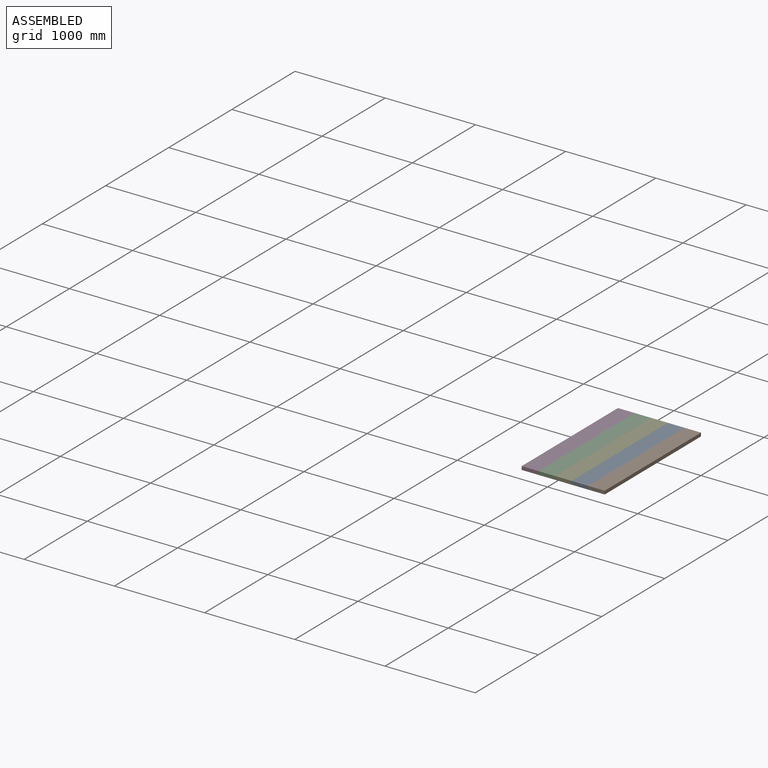
[diagram: assembled view]
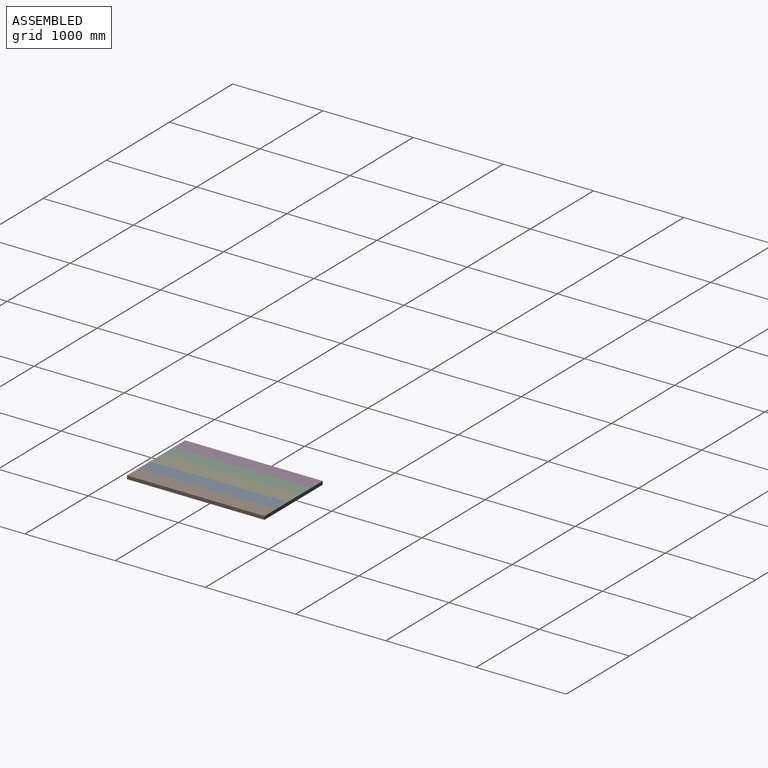
[diagram: assembled view, second angle]
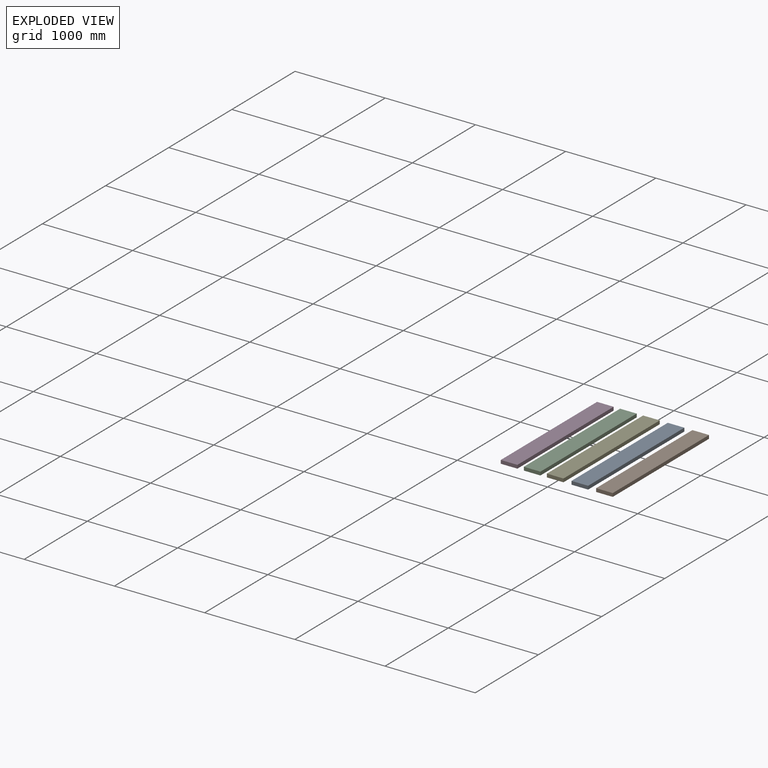
[diagram: exploded view]
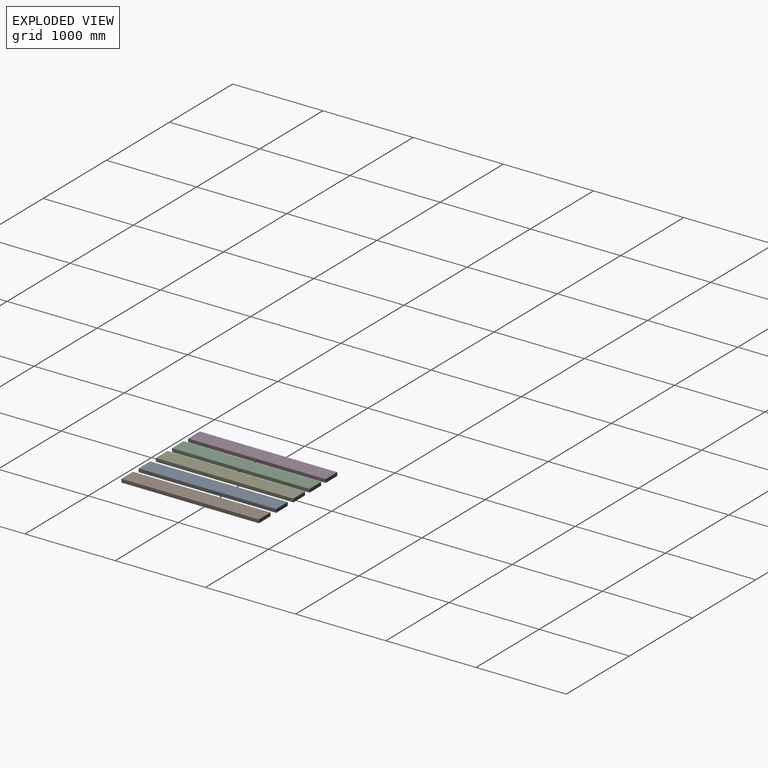
[diagram: exploded view, second angle]
ASSEMBLY  parts=5 mates=4
PART A: 6 faces, bbox 184.2x1524x38.1 mm
  f0: plane 1524x38.1mm, normal (-1,0,0), area 58064.4mm2, adj f1,f3,f4,f5
  f1: plane 1524x184.15mm, normal (0,0,-1), area 280644.6mm2, adj f0,f2,f4,f5
  f2: plane 1524x38.1mm, normal (1,0,0), area 58064.4mm2, adj f1,f3,f4,f5
  f3: plane 1524x184.15mm, normal (0,0,1), area 280644.6mm2, adj f0,f2,f4,f5
  f4: plane 184.15x38.1mm, normal (0,-1,0), area 7016.1mm2, adj f0,f1,f2,f3
  f5: plane 184.15x38.1mm, normal (0,1,0), area 7016.1mm2, adj f0,f1,f2,f3
PART B: same geometry as A
PART C: same geometry as A
PART D: same geometry as A
PART E: same geometry as A
PLACE A t=(184.15,641.28,-25.66)mm
PLACE B t=(368.3,641.28,-25.66)mm
PLACE C t=(-184.15,641.28,-25.66)mm
PLACE D t=(-368.3,641.28,-25.66)mm fixed
PLACE E t=(0,641.28,-25.66)mm
MATE planar A.f2 <-> B.f0  axis (1,0,0) through (368.3,-120.72,-6.61)mm
MATE planar C.f0 <-> D.f2  axis (-1,0,0) through (-184.15,-120.72,-6.61)mm
MATE planar E.f2 <-> A.f0  axis (1,0,0) through (184.15,-120.72,-6.61)mm
MATE planar C.f2 <-> E.f0  axis (1,0,0) through (0,-120.72,-6.61)mm
